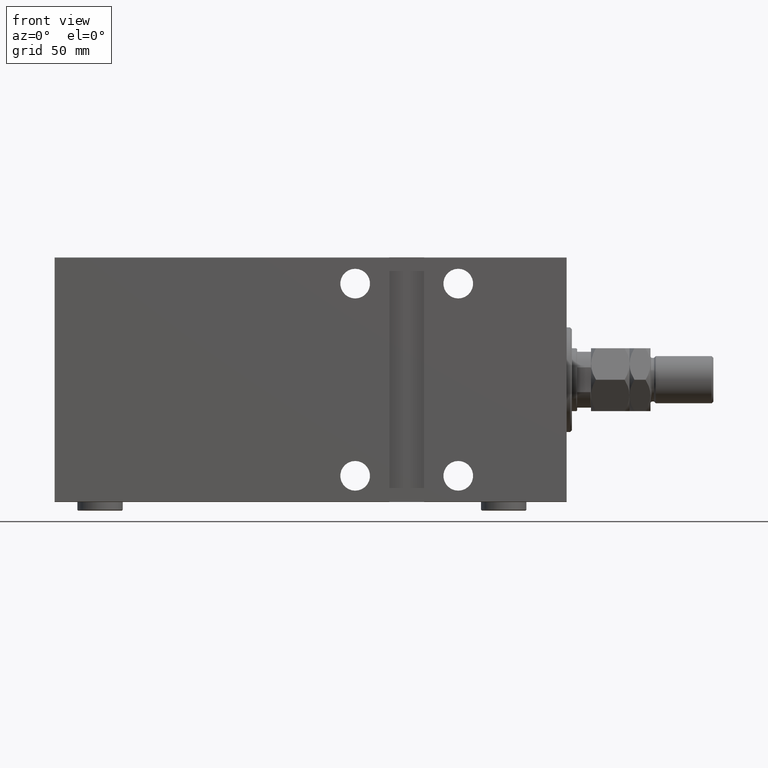
[diagram: clean part render]
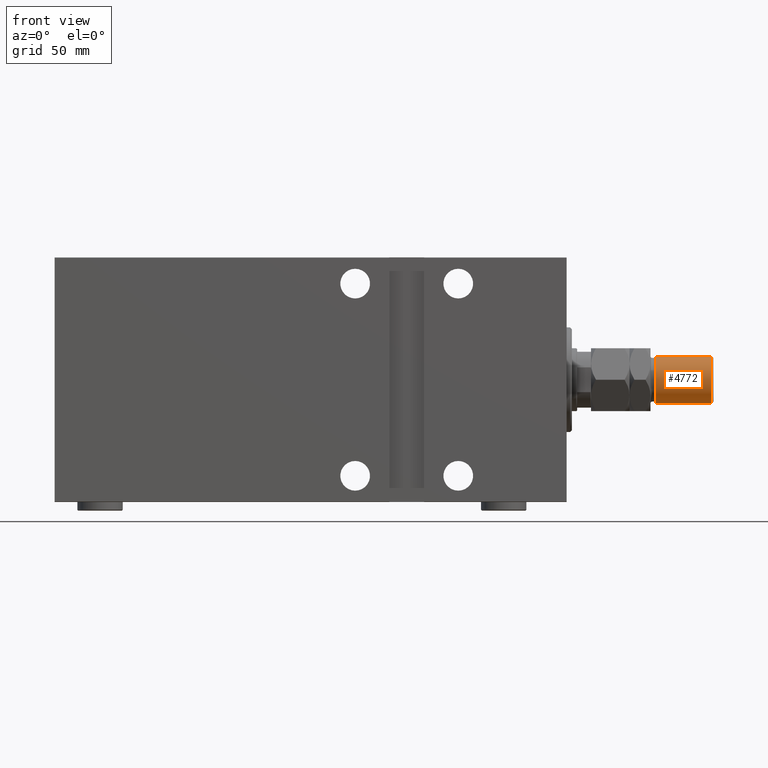
[diagram: same view with one face highlighted and labeled with its STEP entity id]
A machine part, front view. The second image highlights one B-rep face of the part: STEP entity #4772.
In plain terms, the highlighted cylindrical surface (edge-blend (fillet) strip) has radius 13.5 mm, axis along (-1, -0, 0).
Its self-contained STEP definition (entity closure, byte-faithful):
#1510 = VERTEX_POINT ( 'NONE', #20149 ) ;
#2085 = DIRECTION ( 'NONE',  ( 1.000000000000000000, 0.000000000000000000, 0.000000000000000000 ) ) ;
#4772 = ADVANCED_FACE ( 'NONE', ( #19544 ), #40714, .T. ) ;
#5333 = CARTESIAN_POINT ( 'NONE',  ( 0.000000000000000000, 0.000000000000000000, 37.00000000000000000 ) ) ;
#5455 = CARTESIAN_POINT ( 'NONE',  ( 13.50000000000000000, 1.653273178848926867E-15, 70.00000000000000000 ) ) ;
#5468 = ORIENTED_EDGE ( 'NONE', *, *, #26796, .T. ) ;
#7232 = CARTESIAN_POINT ( 'NONE',  ( -13.50000000000000000, 0.000000000000000000, 70.00000000000000000 ) ) ;
#7909 = EDGE_CURVE ( 'NONE', #1510, #14187, #34688, .T. ) ;
#8890 = EDGE_LOOP ( 'NONE', ( #16117, #5468, #23018, #23491 ) ) ;
#11358 = VERTEX_POINT ( 'NONE', #35222 ) ;
#11538 = DIRECTION ( 'NONE',  ( 0.000000000000000000, 0.000000000000000000, -1.000000000000000000 ) ) ;
#12241 = VECTOR ( 'NONE', #21434, 1000.000000000000000 ) ;
#12537 = DIRECTION ( 'NONE',  ( -0.000000000000000000, -0.000000000000000000, 1.000000000000000000 ) ) ;
#14187 = VERTEX_POINT ( 'NONE', #15923 ) ;
#15923 = CARTESIAN_POINT ( 'NONE',  ( 13.50000000000000000, 1.653273178848926867E-15, 37.00000000000000000 ) ) ;
#16117 = ORIENTED_EDGE ( 'NONE', *, *, #16682, .F. ) ;
#16618 = LINE ( 'NONE', #5455, #27880 ) ;
#16682 = EDGE_CURVE ( 'NONE', #11358, #14187, #16618, .T. ) ;
#19315 = CARTESIAN_POINT ( 'NONE',  ( 0.000000000000000000, 0.000000000000000000, 70.00000000000000000 ) ) ;
#19544 = FACE_OUTER_BOUND ( 'NONE', #8890, .T. ) ;
#20149 = CARTESIAN_POINT ( 'NONE',  ( -13.50000000000000000, 0.000000000000000000, 37.00000000000000000 ) ) ;
#20449 = EDGE_CURVE ( 'NONE', #32608, #1510, #35640, .T. ) ;
#21434 = DIRECTION ( 'NONE',  ( -0.000000000000000000, -0.000000000000000000, -1.000000000000000000 ) ) ;
#23018 = ORIENTED_EDGE ( 'NONE', *, *, #20449, .T. ) ;
#23491 = ORIENTED_EDGE ( 'NONE', *, *, #7909, .T. ) ;
#24353 = CIRCLE ( 'NONE', #32527, 13.50000000000000000 ) ;
#26796 = EDGE_CURVE ( 'NONE', #11358, #32608, #24353, .T. ) ;
#27880 = VECTOR ( 'NONE', #34080, 1000.000000000000000 ) ;
#31757 = AXIS2_PLACEMENT_3D ( 'NONE', #19315, #39807, #44189 ) ;
#32527 = AXIS2_PLACEMENT_3D ( 'NONE', #36467, #11538, #43888 ) ;
#32608 = VERTEX_POINT ( 'NONE', #38993 ) ;
#34080 = DIRECTION ( 'NONE',  ( -0.000000000000000000, -0.000000000000000000, -1.000000000000000000 ) ) ;
#34688 = CIRCLE ( 'NONE', #39179, 13.50000000000000000 ) ;
#35222 = CARTESIAN_POINT ( 'NONE',  ( 13.50000000000000000, 1.653273178848926867E-15, 68.99999999999998579 ) ) ;
#35640 = LINE ( 'NONE', #7232, #12241 ) ;
#36467 = CARTESIAN_POINT ( 'NONE',  ( 0.000000000000000000, 0.000000000000000000, 68.99999999999998579 ) ) ;
#38993 = CARTESIAN_POINT ( 'NONE',  ( -13.50000000000000000, 0.000000000000000000, 68.99999999999998579 ) ) ;
#39179 = AXIS2_PLACEMENT_3D ( 'NONE', #5333, #12537, #2085 ) ;
#39807 = DIRECTION ( 'NONE',  ( -0.000000000000000000, -0.000000000000000000, -1.000000000000000000 ) ) ;
#40714 = CYLINDRICAL_SURFACE ( 'NONE', #31757, 13.50000000000000000 ) ;
#43888 = DIRECTION ( 'NONE',  ( 1.000000000000000000, 0.000000000000000000, 0.000000000000000000 ) ) ;
#44189 = DIRECTION ( 'NONE',  ( -1.000000000000000000, 0.000000000000000000, 0.000000000000000000 ) ) ;